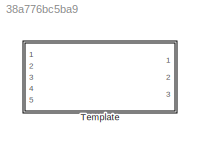
MODEL slx_38a776bc5ba9
KIND library
CONFIG AbsTol = auto
CONFIG EnableMultiTasking = off
CONFIG FixedStep = auto
CONFIG MaxStep = auto
CONFIG MinStep = auto
CONFIG RelTol = 1e-3
CONFIG SampleTimeConstraint = Unconstrained
CONFIG Solver = VariableStepAuto
CONFIG SolverName = VariableStepAuto
CONFIG StartTime = 0.0
CONFIG StopTime = 10.0
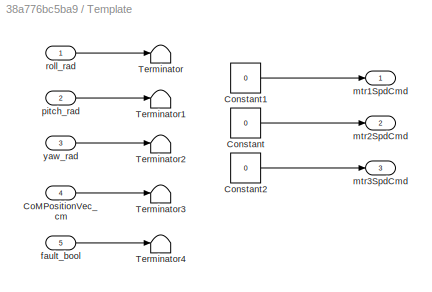
BLOCK [SubSystem] Template
  Ports = [5, 3]
  RequestExecContextInheritance = off
BLOCK [Inport] Template/CoMPositionVec_cm
  IconDisplay = Port number
  Port = 4
BLOCK [Constant] Template/Constant
  Value = 0
BLOCK [Constant] Template/Constant1
  Value = 0
BLOCK [Constant] Template/Constant2
  Value = 0
BLOCK [Terminator] Template/Terminator
BLOCK [Terminator] Template/Terminator1
BLOCK [Terminator] Template/Terminator2
BLOCK [Terminator] Template/Terminator3
BLOCK [Terminator] Template/Terminator4
BLOCK [Inport] Template/fault_bool
  IconDisplay = Port number
  OutDataTypeStr = boolean
  Port = 5
BLOCK [Outport] Template/mtr1SpdCmd
  IconDisplay = Port number
BLOCK [Outport] Template/mtr2SpdCmd
  IconDisplay = Port number
  Port = 2
BLOCK [Outport] Template/mtr3SpdCmd
  IconDisplay = Port number
  Port = 3
BLOCK [Inport] Template/pitch_rad
  IconDisplay = Port number
  Port = 2
BLOCK [Inport] Template/roll_rad
  IconDisplay = Port number
BLOCK [Inport] Template/yaw_rad
  IconDisplay = Port number
  Port = 3
LINE Template/CoMPositionVec_cm:1 -> Template/Terminator3:1
LINE Template/Constant1:1 -> Template/mtr1SpdCmd:1
LINE Template/Constant2:1 -> Template/mtr3SpdCmd:1
LINE Template/Constant:1 -> Template/mtr2SpdCmd:1
LINE Template/fault_bool:1 -> Template/Terminator4:1
LINE Template/pitch_rad:1 -> Template/Terminator1:1
LINE Template/roll_rad:1 -> Template/Terminator:1
LINE Template/yaw_rad:1 -> Template/Terminator2:1
